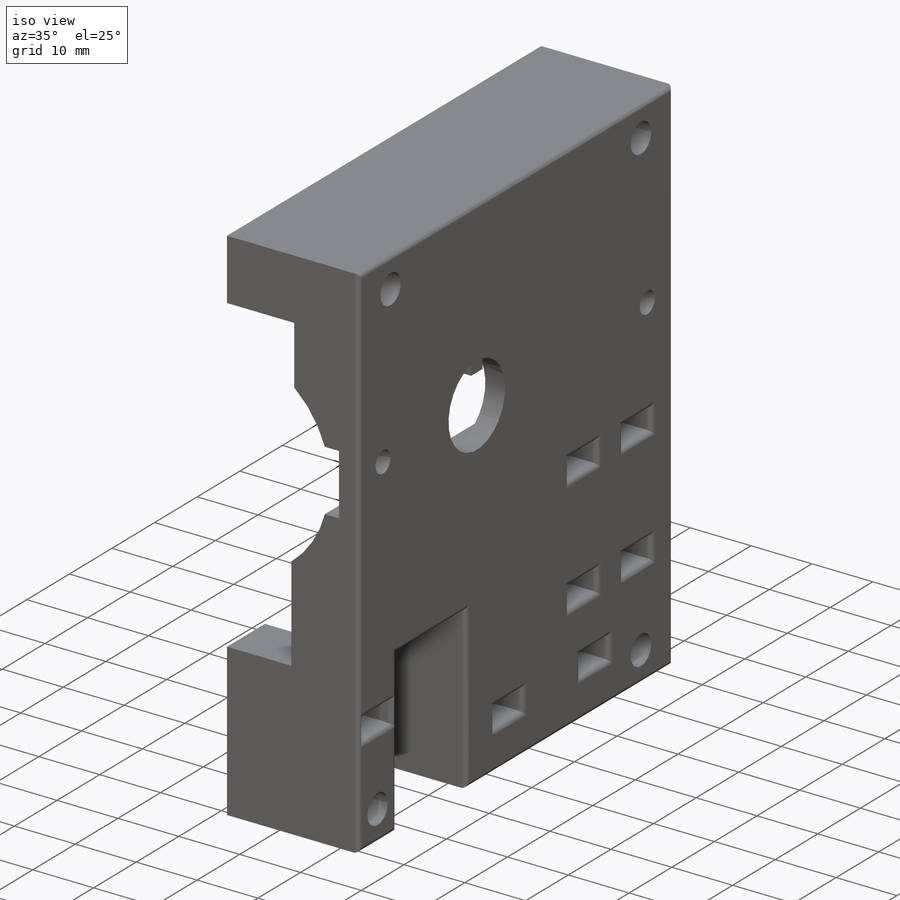
[diagram: iso view]
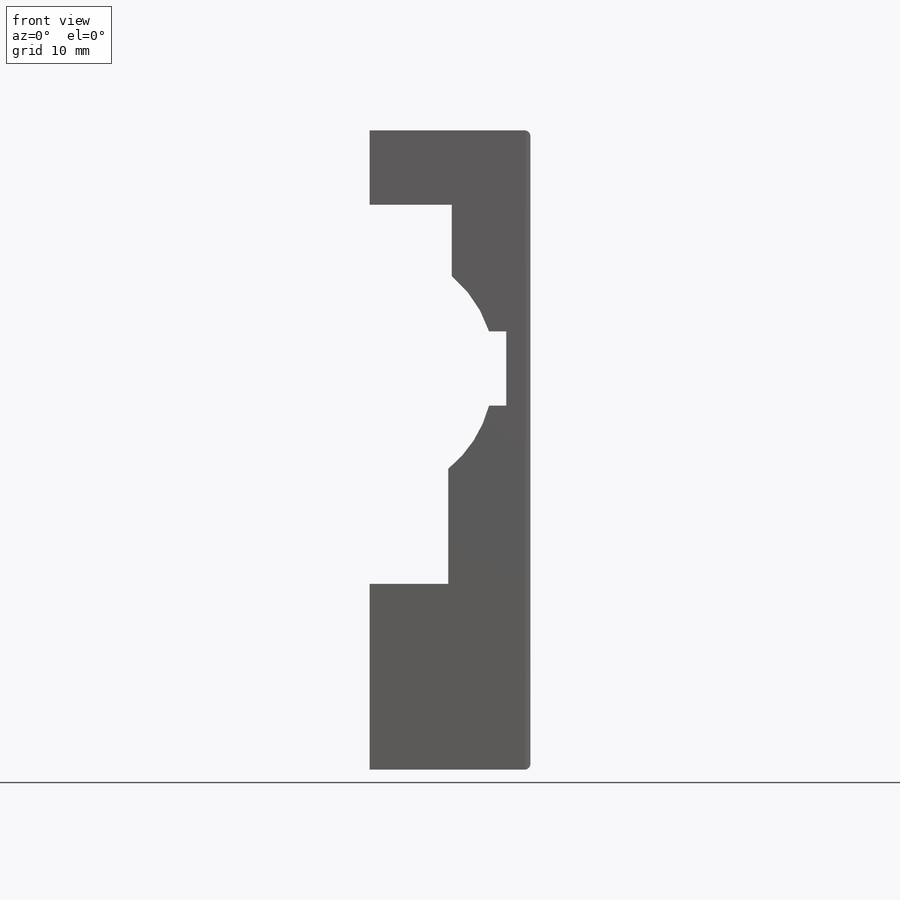
[diagram: front view]
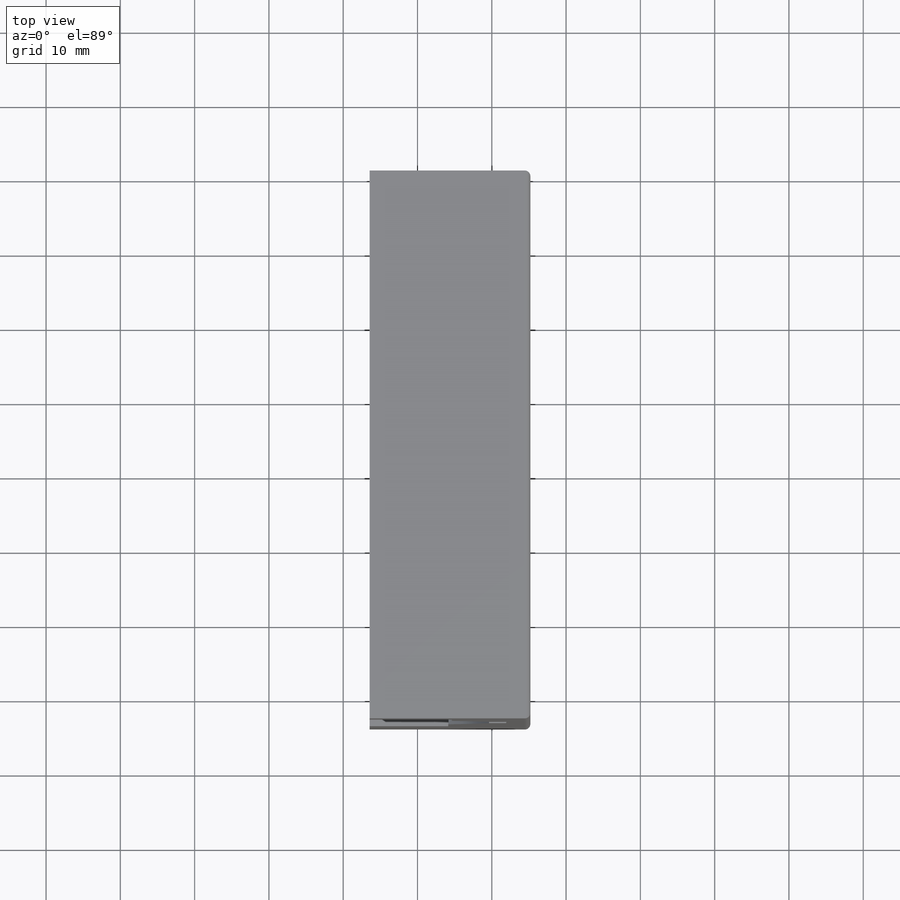
[diagram: top view]
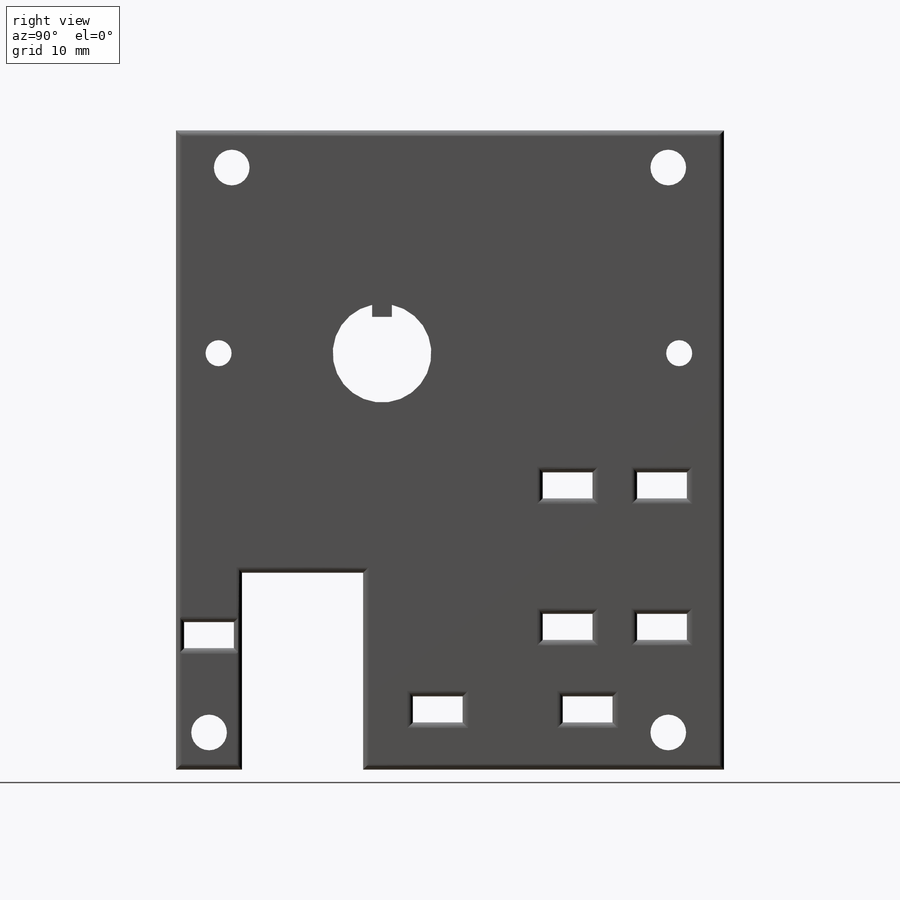
[diagram: right view]
SOLIDWORKS PART (.sldprt)
format: sldprt  version: not decoded by parser v0  size: 582,656 bytes
history: native  units: mm
features: sketch x6, cut_extrude x5, material x1, extrude x1, fillet x1 (+13 scaffold rows collapsed)
feature tree (27):
  scaffold x13  (default folders/planes/origin — collapsed)
  material  "Material <not specified>"
  sketch  "Profile"  dims[c1.D1=16.261mm c1.D14=16.261mm c1.D17=16.261mm c2.D1=~29.496236mm c2.D2=~13.953988mm c3.D1=~63.984142mm c3.D2=~20.647365mm c4.D1=~58.311789mm c4.D2=~16.903612mm c5.D1=~59.900048mm c5.D2=~22.462518mm c6.D1=~5.627275mm c6.D2=~1.381725mm c7.D1=~13.983194mm c7.D2=10.0mm c7.D3=2.32mm c7.D4=2.318mm c7.D5=9.6mm c7.D6=11.05mm c7.D7=15.49mm c7.D8=10.58mm c7.D9=25.0mm c7.D10=~22.462518mm c7.D11=~59.900048mm c7.D12=~22.462518mm c8.D10=21.63mm c8.D12=21.63mm c8.D13=10.0mm c8.D14=51.04mm c8.D11=86.04mm c8.D15=23.99mm c8.D16=5.492mm]
  extrude  "ProfileExtrude"  Depth=73.76mm
  sketch  "HoseWindow"  dims[c1.D1=~9.924883mm c1.D2=~14.294737mm c2.D1=16.29mm c2.D2=26.5mm c2.D3=8.89mm]
  cut_extrude  "HoseWindowCut"  [1 undecoded]
  sketch  "CageScrews"  dims[c1.D1=4.8mm c1.D2=4.8mm c1.D3=4.8mm c1.D4=4.8mm c1.D5=5.0mm c1.D6=7.5mm c1.D7=~6.148579mm c1.D8=~9.164779mm c2.D7=7.5mm c2.D8=5.0mm c2.D9=5.0mm c2.D10=7.5mm c2.D11=5.0mm c2.D12=4.45mm]
  cut_extrude  "CageScrewsCut"  [1 undecoded]
  sketch  "AxleHole"  dims[D1=13.278mm D2=1.619mm D3=1.619mm D4=1.331mm D5=56.05mm D6=46.03mm]
  cut_extrude  "AxleHoleCut"  [1 undecoded]
  sketch  "SetScrews"  dims[c1.D1=~5.577525mm c1.D3=3.5mm c1.D4=3.5mm c2.D1=~21.027764mm c2.D2=~41.838133mm c3.D1=22.0mm c3.D2=40.0mm]
  cut_extrude  "SetScrewsCut"  [1 undecoded]
  sketch  "Sketch1"  dims[c1.D1=15.0mm c1.D2=6.7mm c1.D3=6.7mm c1.D4=6.35mm c1.D5=12.6mm c1.D6=12.6mm c2.D1=6.35mm c2.D2=3.5mm c2.D3=3.5mm c2.D4=6.7mm c2.D5=6.5mm c2.D6=3.5mm c2.D7=6.7mm c2.D8=6.7mm c2.D9=15.0mm c2.D10=6.7mm c2.D11=1.095mm c2.D12=6.7mm c2.D13=6.7mm c2.D14=~1.114997mm c2.D15=5.0mm c2.D16=3.5mm c2.D17=3.5mm c2.D18=6.7mm c2.D19=6.7mm c2.D20=0.0mm c2.D21=4.385mm c2.D22=1.615mm c3.D13=3.5mm c3.D17=3.5mm c3.D19=13.05mm c3.D20=19.05mm c3.D12=3.5mm c4.D13=6.7mm c4.D14=~1.114997mm c4.D15=5.0mm c4.D16=12.7mm c4.D17=19.05mm]
  cut_extrude  "Cut-Extrude1"  [1 undecoded]
  fillet  "Fillet1"  Radius=0.75mm
decode coverage: 8 of 13 modeling features carry decoded parameters
note: ~ marks probable driven/reference dimensions
note: 5 parameter values undecoded
summary: no parameter record found for 5 features
note: suppression state not decoded; provenance and decode notes live in map.json
